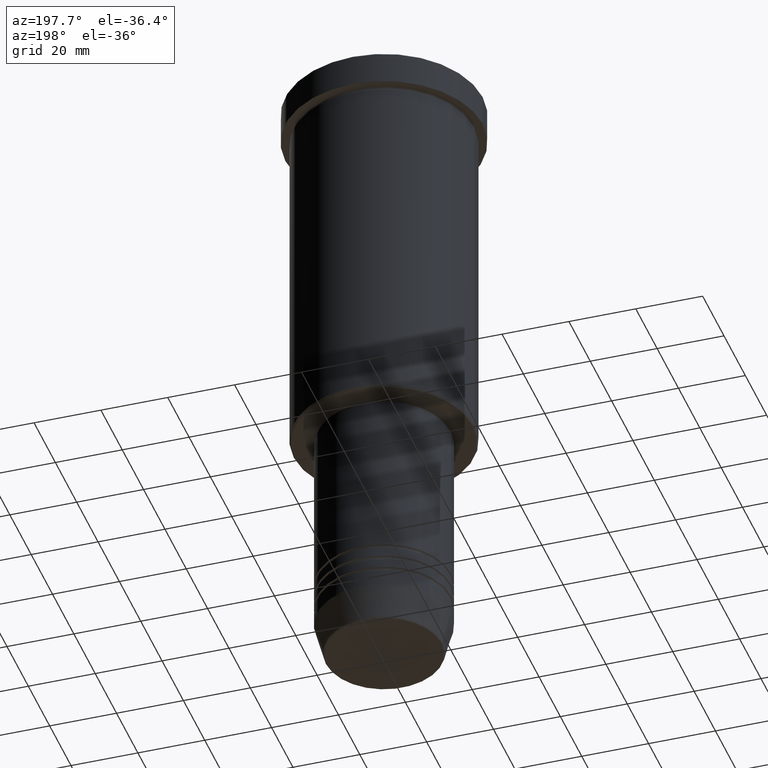
[diagram: clean part render]
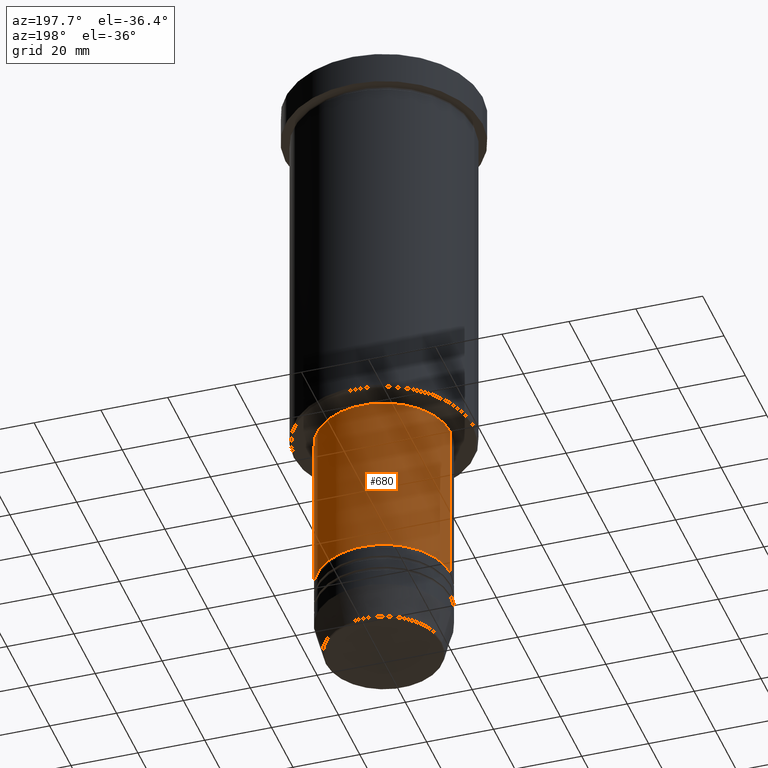
[diagram: same view with one face highlighted and labeled with its STEP entity id]
A machine part, auxiliary view. The second image highlights one B-rep face of the part: STEP entity #680.
In plain terms, the highlighted cylindrical surface (partial cylindrical patch) has radius 20 mm, axis along (-0, -0, 1).
Its self-contained STEP definition (entity closure, byte-faithful):
#18 = CYLINDRICAL_SURFACE ( 'NONE', #1124, 19.99999999999999645 ) ;
#22 = CARTESIAN_POINT ( 'NONE',  ( 0.000000000000000000, 0.000000000000000000, 0.000000000000000000 ) ) ;
#23 = ORIENTED_EDGE ( 'NONE', *, *, #646, .F. ) ;
#72 = CIRCLE ( 'NONE', #699, 19.99999999999999645 ) ;
#104 = CARTESIAN_POINT ( 'NONE',  ( 0.000000000000000000, 0.000000000000000000, -166.9999999999998863 ) ) ;
#107 = CARTESIAN_POINT ( 'NONE',  ( 19.99999999999999645, 0.000000000000000000, 0.000000000000000000 ) ) ;
#118 = CARTESIAN_POINT ( 'NONE',  ( 20.00000000000000000, 0.000000000000000000, -166.9999999999998863 ) ) ;
#165 = CARTESIAN_POINT ( 'NONE',  ( 0.000000000000000000, 0.000000000000000000, -117.0000000000000426 ) ) ;
#167 = EDGE_CURVE ( 'NONE', #994, #975, #72, .T. ) ;
#185 = DIRECTION ( 'NONE',  ( -0.000000000000000000, -0.000000000000000000, 1.000000000000000000 ) ) ;
#196 = EDGE_CURVE ( 'NONE', #216, #1068, #1148, .T. ) ;
#201 = ORIENTED_EDGE ( 'NONE', *, *, #398, .T. ) ;
#214 = DIRECTION ( 'NONE',  ( 1.000000000000000000, 0.000000000000000000, 0.000000000000000000 ) ) ;
#216 = VERTEX_POINT ( 'NONE', #118 ) ;
#272 = EDGE_LOOP ( 'NONE', ( #599, #201, #289, #23 ) ) ;
#288 = DIRECTION ( 'NONE',  ( 1.000000000000000000, 0.000000000000000000, 0.000000000000000000 ) ) ;
#289 = ORIENTED_EDGE ( 'NONE', *, *, #167, .F. ) ;
#309 = VECTOR ( 'NONE', #1112, 1000.000000000000000 ) ;
#398 = EDGE_CURVE ( 'NONE', #1068, #975, #527, .T. ) ;
#522 = DIRECTION ( 'NONE',  ( 1.000000000000000000, 0.000000000000000000, 0.000000000000000000 ) ) ;
#527 = LINE ( 'NONE', #885, #891 ) ;
#547 = CARTESIAN_POINT ( 'NONE',  ( -19.99999999999999645, 2.449293598294706119E-15, -117.0000000000000426 ) ) ;
#599 = ORIENTED_EDGE ( 'NONE', *, *, #196, .T. ) ;
#643 = FACE_OUTER_BOUND ( 'NONE', #272, .T. ) ;
#646 = EDGE_CURVE ( 'NONE', #216, #994, #907, .T. ) ;
#680 = ADVANCED_FACE ( 'NONE', ( #643 ), #18, .T. ) ;
#699 = AXIS2_PLACEMENT_3D ( 'NONE', #165, #185, #522 ) ;
#793 = DIRECTION ( 'NONE',  ( -0.000000000000000000, -0.000000000000000000, 1.000000000000000000 ) ) ;
#885 = CARTESIAN_POINT ( 'NONE',  ( -19.99999999999999645, 2.449293598294706119E-15, 0.000000000000000000 ) ) ;
#891 = VECTOR ( 'NONE', #793, 1000.000000000000000 ) ;
#907 = LINE ( 'NONE', #107, #309 ) ;
#912 = AXIS2_PLACEMENT_3D ( 'NONE', #104, #1036, #214 ) ;
#975 = VERTEX_POINT ( 'NONE', #547 ) ;
#994 = VERTEX_POINT ( 'NONE', #1044 ) ;
#1031 = CARTESIAN_POINT ( 'NONE',  ( -20.00000000000000000, 2.449293598294706513E-15, -166.9999999999998863 ) ) ;
#1036 = DIRECTION ( 'NONE',  ( -0.000000000000000000, -0.000000000000000000, 1.000000000000000000 ) ) ;
#1044 = CARTESIAN_POINT ( 'NONE',  ( 19.99999999999999645, 0.000000000000000000, -117.0000000000000426 ) ) ;
#1068 = VERTEX_POINT ( 'NONE', #1031 ) ;
#1112 = DIRECTION ( 'NONE',  ( -0.000000000000000000, -0.000000000000000000, 1.000000000000000000 ) ) ;
#1124 = AXIS2_PLACEMENT_3D ( 'NONE', #22, #1129, #288 ) ;
#1129 = DIRECTION ( 'NONE',  ( -0.000000000000000000, -0.000000000000000000, 1.000000000000000000 ) ) ;
#1148 = CIRCLE ( 'NONE', #912, 20.00000000000000000 ) ;